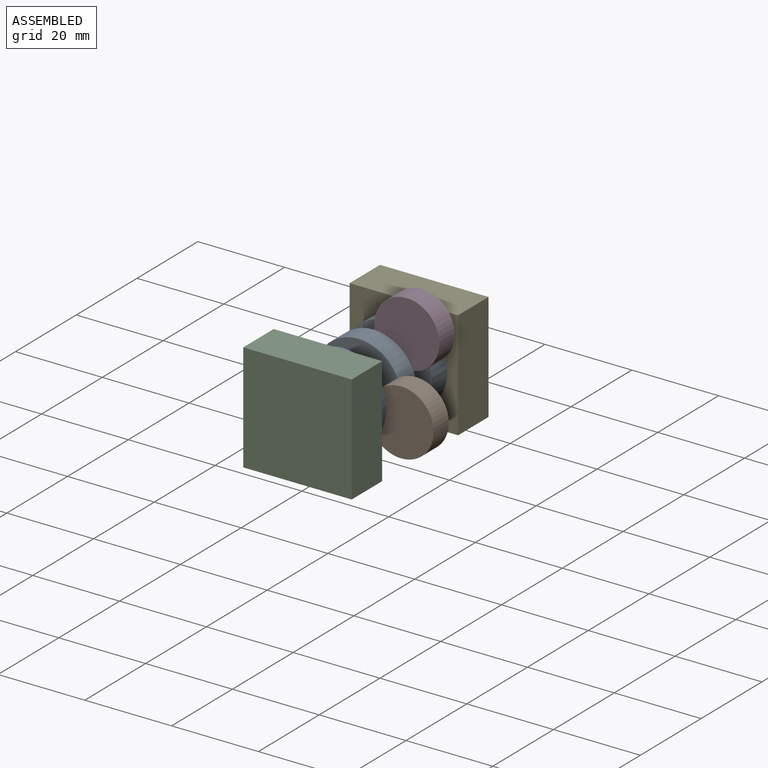
[diagram: assembled view]
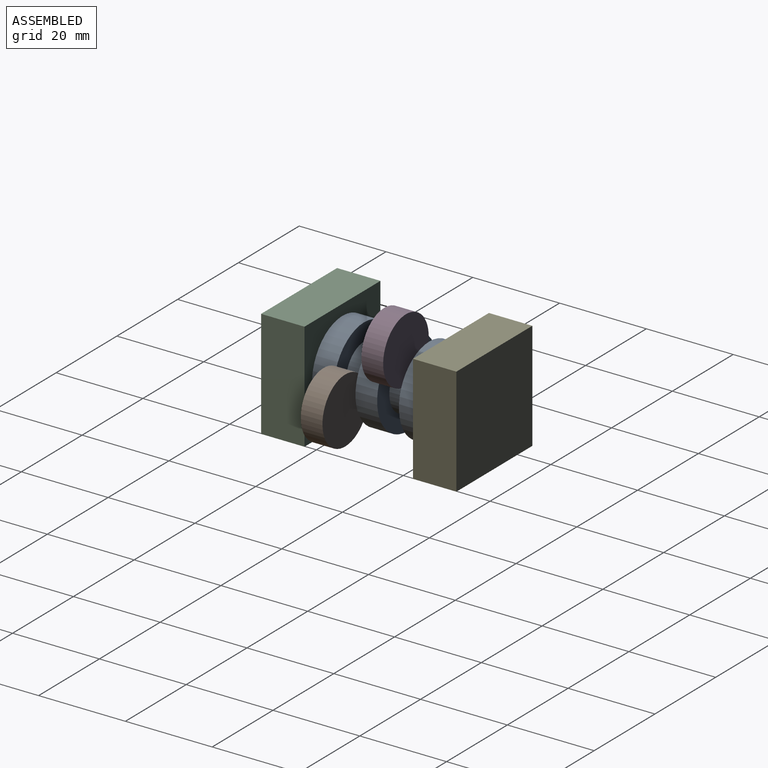
[diagram: assembled view, second angle]
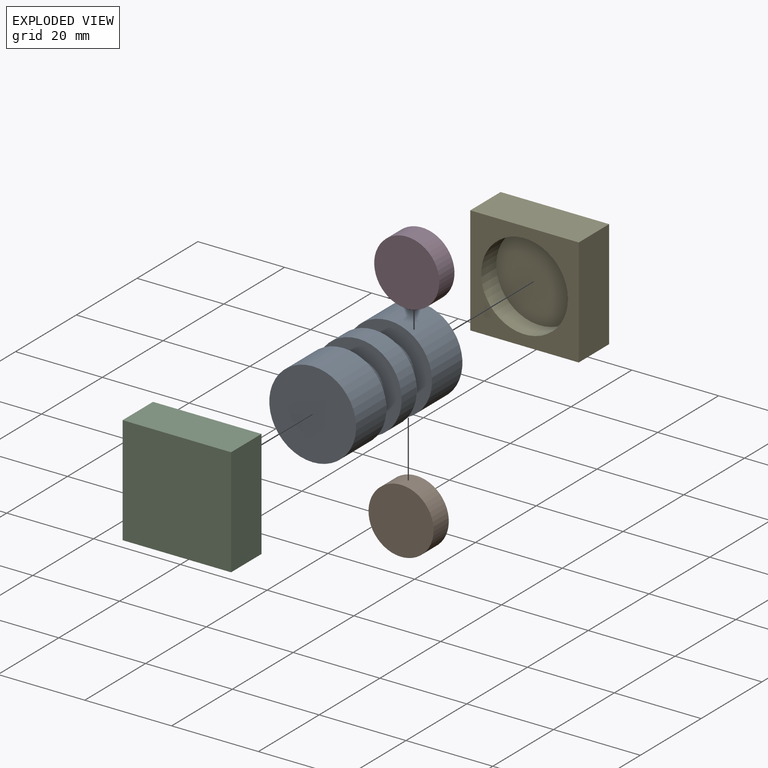
[diagram: exploded view]
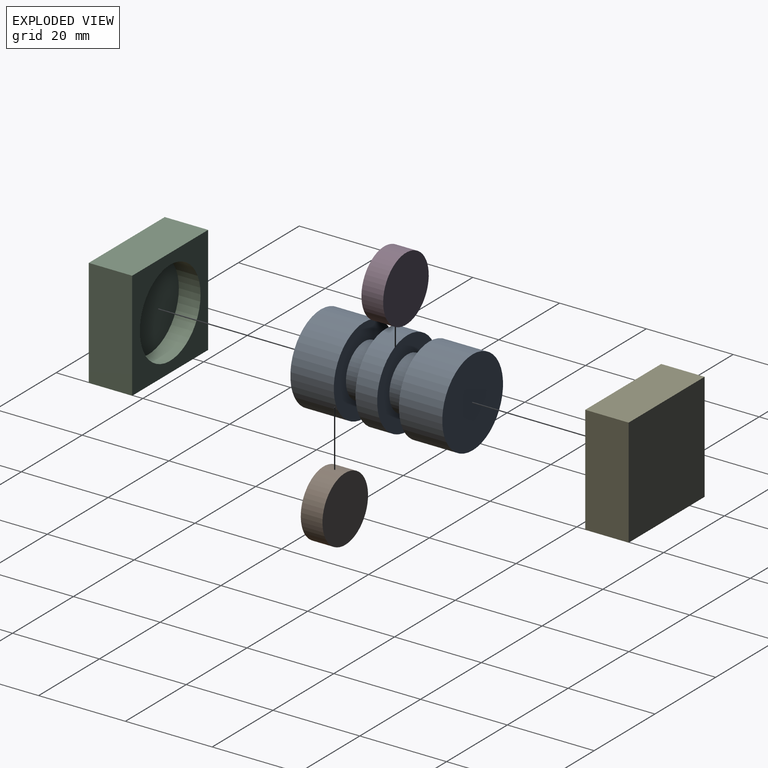
[diagram: exploded view, second angle]
ASSEMBLY  parts=5 mates=4
PART A: 11 faces, bbox 20x35x20 mm
  f0: cylinder r=6mm len=12mm, axis (0,-1,0), area 188.5mm2, adj f1,f10
  f1: plane 20x20mm, normal (0,1,0), area 201.1mm2, adj f0,f2
  f2: cylinder r=10mm len=20mm, axis (0,-1,0), area 314.2mm2, adj f1,f3
  f3: plane 20x20mm, normal (0,-1,0), area 201.1mm2, adj f2,f4
  f4: cylinder r=6mm len=12mm, axis (0,-1,0), area 188.5mm2, adj f3,f5
  f5: plane 20x20mm, normal (0,1,0), area 201.1mm2, adj f4,f6
  f6: cylinder r=10mm len=20mm, axis (0,-1,0), area 628.3mm2, adj f5,f7
  f7: plane 20x20mm, normal (0,-1,0), area 314.2mm2, adj f6
  f8: plane 20x20mm, normal (0,1,0), area 314.2mm2, adj f9
  f9: cylinder r=10mm len=20mm, axis (0,-1,0), area 628.3mm2, adj f8,f10
  f10: plane 20x20mm, normal (0,-1,0), area 201.1mm2, adj f0,f9
PART B: 3 faces, bbox 15x5x15 mm
  f0: cylinder r=7.5mm len=15mm, axis (0,1,0), area 235.6mm2, adj f1,f2
  f1: plane 15x15mm, normal (0,-1,0), area 176.7mm2, adj f0
  f2: plane 15x15mm, normal (0,1,0), area 176.7mm2, adj f0
PART C: 8 faces, bbox 25x10x25 mm
  f0: plane 25x10mm, normal (1,0,0), area 250mm2, adj f1,f3,f4,f5
  f1: plane 25x10mm, normal (0,0,1), area 250mm2, adj f0,f2,f4,f5
  f2: plane 25x10mm, normal (-1,0,0), area 250mm2, adj f1,f3,f4,f5
  f3: plane 25x10mm, normal (0,0,-1), area 250mm2, adj f0,f2,f4,f5
  f4: plane 25x25mm, normal (0,-1,0), area 625mm2, adj f0,f1,f2,f3
  f5: plane 25x25mm, normal (0,1,0), area 310.8mm2, adj f0,f1,f2,f3,f6
  f6: cylinder r=10mm len=20mm, axis (0,1,0), area 314.2mm2, adj f5,f7
  f7: plane 20x20mm, normal (0,1,0), area 314.2mm2, adj f6
PART D: 3 faces, bbox 15x5x15 mm
  f0: cylinder r=7.5mm len=15mm, axis (0,1,0), area 235.6mm2, adj f1,f2
  f1: plane 15x15mm, normal (0,-1,0), area 176.7mm2, adj f0
  f2: plane 15x15mm, normal (0,1,0), area 176.7mm2, adj f0
PART E: 8 faces, bbox 25x10x25 mm
  f0: plane 25x10mm, normal (0,0,-1), area 250mm2, adj f1,f3,f4,f5
  f1: plane 25x10mm, normal (1,0,0), area 250mm2, adj f0,f2,f4,f5
  f2: plane 25x10mm, normal (0,0,1), area 250mm2, adj f1,f3,f4,f5
  f3: plane 25x10mm, normal (-1,0,0), area 250mm2, adj f0,f2,f4,f5
  f4: plane 25x25mm, normal (0,1,0), area 625mm2, adj f0,f1,f2,f3
  f5: plane 25x25mm, normal (0,-1,0), area 310.8mm2, adj f0,f1,f2,f3,f6
  f6: cylinder r=10mm len=20mm, axis (0,-1,0), area 314.2mm2, adj f5,f7
  f7: plane 20x20mm, normal (0,-1,0), area 314.2mm2, adj f6
PLACE A at identity fixed
PLACE B rot(axis=(0.05,0,-1),180deg) t=(26.8,15,-0.62)mm
PLACE C at identity
PLACE D rot(axis=(0,1,0),177.2deg) t=(21.15,0,11.77)mm
PLACE E at identity
MATE fastened E.f6 <-> A.f0  axis (0,-1,0) through (0,30,0)mm
MATE planar A.f0 <-> D.f0  axis (0,-1,0) through (0,20,0)mm
MATE planar A.f0 <-> B.f0  axis (0,-1,0) through (0,10,0)mm
MATE fastened C.f6 <-> A.f0  axis (0,1,0) through (0,-5,0)mm
